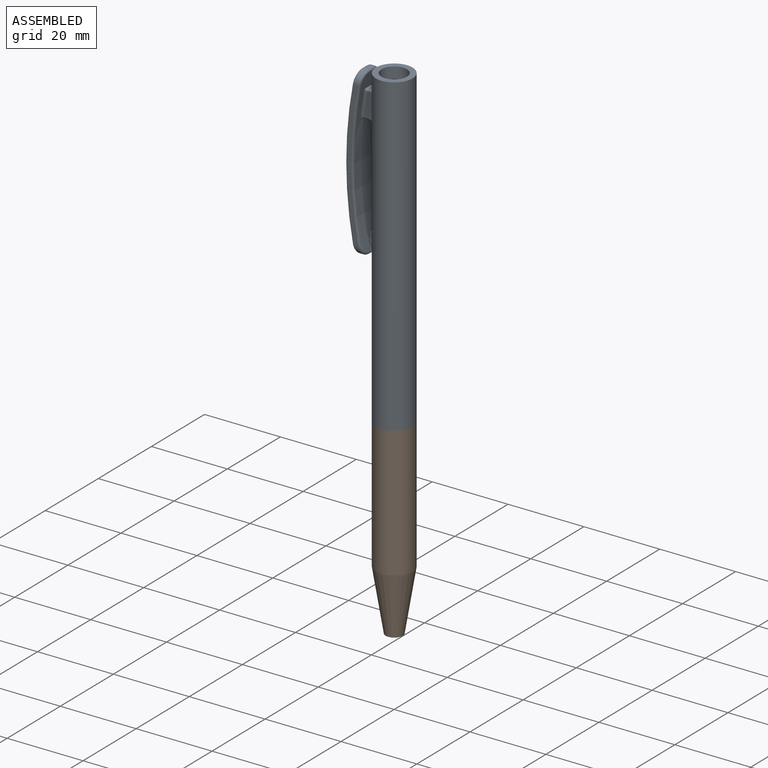
[diagram: assembled view]
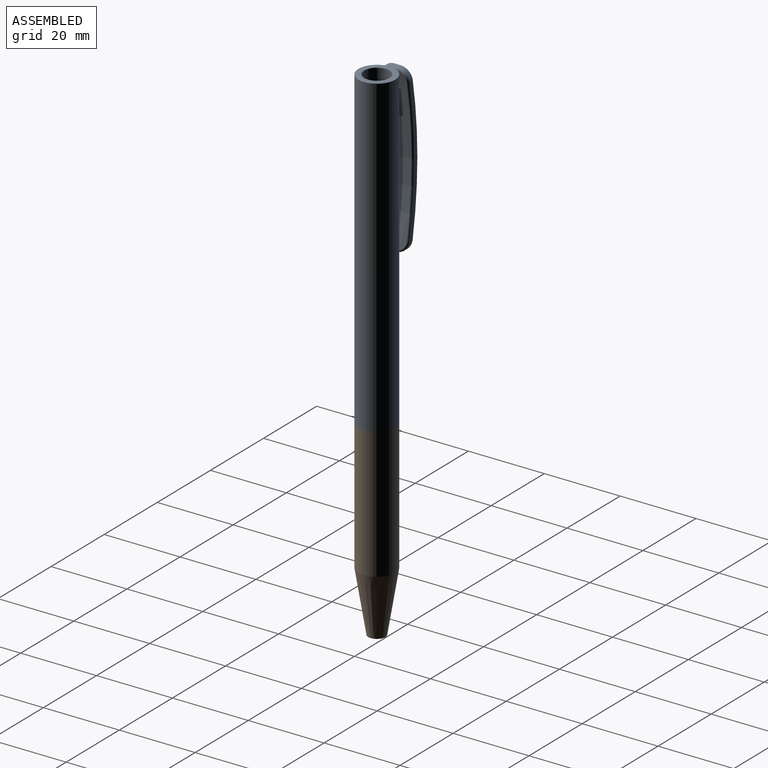
[diagram: assembled view, second angle]
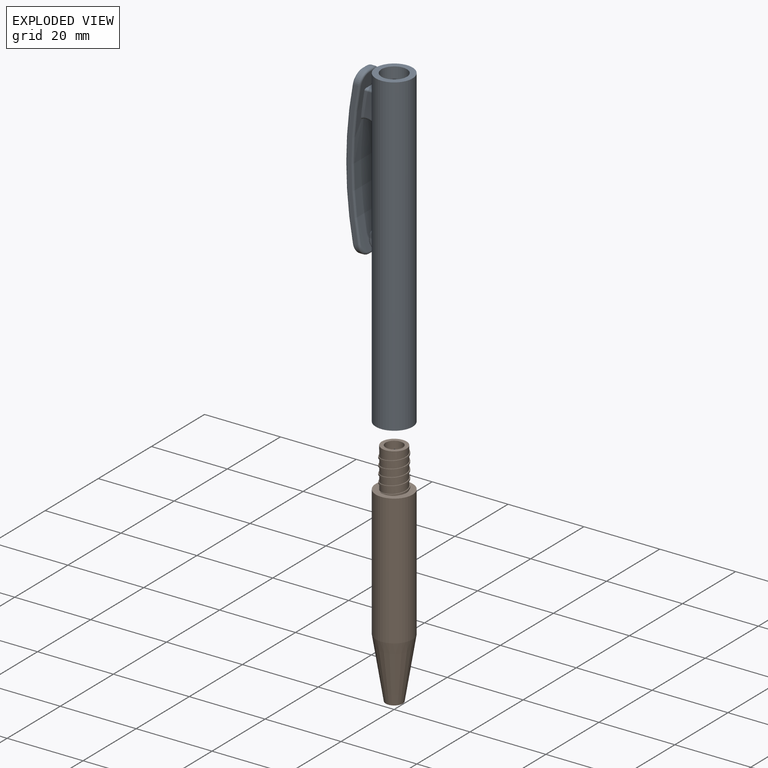
[diagram: exploded view]
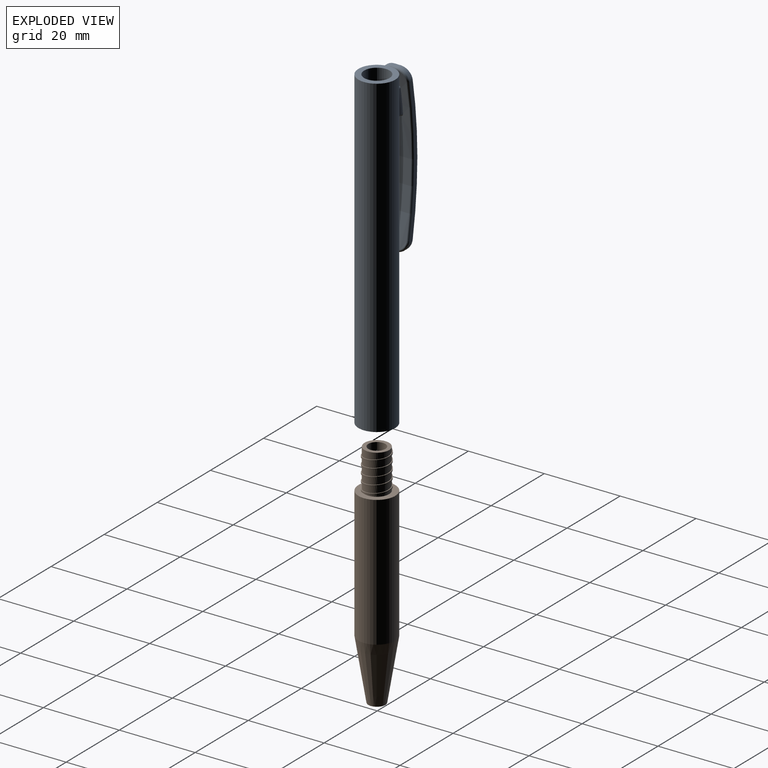
[diagram: exploded view, second angle]
ASSEMBLY  parts=2 mates=2
PART A: 56 faces, bbox 16.9x9.7x83 mm
  f0: cylinder r=3.35mm len=70.7mm, axis (0,0,-1), area 1467mm2, adj f1,f9,f14,f15
  f1: cylinder r=3.35mm len=6.7mm, axis (0,0,-1), area 29.4mm2, adj f0,f2,f15,f16
  f2: cylinder r=3.35mm len=6.7mm, axis (0,0,-1), area 29.4mm2, adj f1,f3,f15,f16
  f3: cylinder r=3.35mm len=6.7mm, axis (0,0,-1), area 29.4mm2, adj f2,f4,f15,f16
  f4: cylinder r=3.35mm len=6.7mm, axis (0,0,-1), area 29.4mm2, adj f3,f5,f15,f16
  f5: cylinder r=3.35mm len=6.7mm, axis (0,0,-1), area 29.4mm2, adj f4,f6,f15,f16
  f6: cylinder r=3.35mm len=6.7mm, axis (0,0,-1), area 26.9mm2, adj f5,f7,f12,f15,f16
  f7: cylinder r=3.35mm len=5.38mm, axis (0,0,-1), area 2.6mm2, adj f6,f12,f16
  f8: cylinder r=4.85mm len=83mm, axis (0,0,-1), area 2492.7mm2, adj f9,f10,f17,f18,f19,f20,f21,f22
  f9: plane 9.7x9.7mm, normal (0,0,1), area 38.6mm2, adj f0,f8
  f10: plane 9.7x9.7mm, normal (0,0,-1), area 32mm2, adj f8,f11
  f11: cylinder r=3.65mm len=7.3mm, axis (0,0,-1), area 22.9mm2, adj f10,f12,f13
  f12: plane 7.31x5.88mm, normal (0,0,-1), area 4.6mm2, adj f6,f7,f11,f15,f16
  f13: bspline ~13.93x8.44mm, area 89.5mm2, adj f11,f14,f15,f16
  f14: plane 0.6x0.3mm, normal (-0.03,1,-0.07), area 0.2mm2, adj f0,f13,f15,f16
  f15: bspline ~13.67x8.44mm, area 44mm2, adj f0,f1,f2,f3,f4,f5,f6,f12
  f16: bspline ~12.7x7.3mm, area 42.3mm2, adj f1,f2,f3,f4,f5,f6,f7,f12
  f17: plane 6.7x3.09mm, normal (0,-1,0), area 17mm2, adj f8,f22,f23,f27
  f18: plane 6.7x3.09mm, normal (0,1,0), area 17mm2, adj f8,f20,f21,f27
  f19: cylinder r=3mm len=3.01mm, axis (0,1,0), area 6.2mm2, adj f8,f20,f22,f27
  f20: torus R=3.5mm, axis (0,-1,0), area 2.5mm2, adj f8,f18,f19,f27
  f21: cylinder r=0.5mm len=2.21mm, axis (-1,0,0), area 1.6mm2, adj f8,f18,f27,f50
  f22: torus R=3.5mm, axis (0,-1,0), area 2.5mm2, adj f8,f17,f19,f27
  f23: cylinder r=0.5mm len=2.21mm, axis (1,0,0), area 1.6mm2, adj f8,f17,f27,f50
  f24: plane 1.5x1.02mm, normal (0,0,1), area 1.5mm2, adj f31,f33,f35,f44
  f25: cylinder r=104.39mm len=43.21mm, axis (0,1,0), area 270.1mm2, adj f34,f35,f36,f37,f38,f39,f40,f41
  f26: plane 1.5x1.02mm, normal (0,0,-1), area 1.5mm2, adj f30,f32,f40,f47
  f27: cylinder r=102.39mm len=42.79mm, axis (0,1,0), area 252.3mm2, adj f17,f18,f19,f20,f21,f22,f23,f42
  f28: plane 38x2.77mm, normal (0,-1,0), area 38.2mm2, adj f32,f33,f36,f43
  f29: plane 38x2.77mm, normal (0,1,0), area 38.2mm2, adj f30,f31,f39,f48
  f30: cylinder r=3mm len=3mm, axis (1,0,0), area 4.8mm2, adj f26,f29,f41,f49
  f31: cylinder r=3mm len=3mm, axis (-1,0,0), area 4.8mm2, adj f24,f29,f37,f46
  f32: cylinder r=3mm len=3mm, axis (-1,0,0), area 4.8mm2, adj f26,f28,f38,f45
  f33: cylinder r=3mm len=3mm, axis (1,0,0), area 4.8mm2, adj f24,f28,f34,f42
  f34: bspline ~3.66x3.17mm, area 3.2mm2, adj f25,f33,f35,f36
  f35: cylinder r=0.5mm len=1.5mm, axis (0,1,0), area 1mm2, adj f24,f25,f34,f37
  f36: torus R=103.89mm, axis (0,-1,0), area 30.1mm2, adj f25,f28,f34,f38
  f37: bspline ~3.68x3.66mm, area 3.2mm2, adj f25,f31,f35,f39
  f38: bspline ~3.68x3.17mm, area 3.2mm2, adj f25,f32,f36,f40
  f39: torus R=103.89mm, axis (0,-1,0), area 30.1mm2, adj f25,f29,f37,f41
  f40: cylinder r=0.5mm len=1.5mm, axis (0,1,0), area 1mm2, adj f25,f26,f38,f41
  f41: bspline ~3.66x3.17mm, area 3.2mm2, adj f25,f30,f39,f40
  f42: bspline ~3.76x3.69mm, area 3.8mm2, adj f27,f33,f43,f44
  f43: torus R=102.89mm, axis (0,-1,0), area 29.9mm2, adj f27,f28,f42,f45
  f44: cylinder r=0.5mm len=1.5mm, axis (0,1,0), area 1.3mm2, adj f24,f27,f42,f46
  f45: bspline ~3.76x3.69mm, area 3.8mm2, adj f27,f32,f43,f47
  f46: bspline ~3.76x3.69mm, area 3.8mm2, adj f27,f31,f44,f48
  f47: cylinder r=0.5mm len=1.5mm, axis (0,1,0), area 1.3mm2, adj f26,f27,f45,f49
  f48: torus R=102.89mm, axis (0,-1,0), area 29.9mm2, adj f27,f29,f46,f49
  f49: bspline ~3.76x3.69mm, area 3.8mm2, adj f27,f30,f47,f48
  f50: plane 2x1.99mm, normal (0,0,1), area 3.8mm2, adj f8,f21,f23,f27
  f51: cylinder r=3mm len=4.65mm, axis (0,1,0), area 10.3mm2, adj f8,f54,f55
  f52: plane 3.55x0.74mm, normal (0,-1,0), area 1.8mm2, adj f8,f55
  f53: plane 3.55x0.74mm, normal (0,1,0), area 1.8mm2, adj f8,f54
  f54: torus R=2.5mm, axis (0,-1,0), area 3.9mm2, adj f8,f51,f53
  f55: torus R=2.5mm, axis (0,-1,0), area 3.9mm2, adj f8,f51,f52
PART B: 20 faces, bbox 9.8x9.8x61.1 mm
  f0: cylinder r=3.25mm len=6.5mm, axis (0,0,-1), area 58mm2, adj f4,f5,f7,f9,f10
  f1: cylinder r=3.25mm len=6.5mm, axis (0,0,-1), area 19.6mm2, adj f2,f5,f7,f11
  f2: cylinder r=3.25mm len=6.5mm, axis (0,0,-1), area 32.6mm2, adj f1,f3,f5,f7
  f3: cylinder r=3.25mm len=6.5mm, axis (0,0,-1), area 32.6mm2, adj f2,f4,f5,f7
  f4: cylinder r=3.25mm len=6.5mm, axis (0,0,-1), area 32.6mm2, adj f0,f3,f5,f7
  f5: bspline ~9.33x7.97mm, area 19.7mm2, adj f0,f1,f2,f3,f4,f6,f10,f11
  f6: bspline ~10.4x7.97mm, area 41.3mm2, adj f5,f7,f10,f11
  f7: bspline ~10x7.97mm, area 20.5mm2, adj f0,f1,f2,f3,f4,f6,f10,f11
  f8: cylinder r=2.25mm len=12mm, axis (0,0,-1), area 169.6mm2, adj f9,f13
  f9: plane 6.5x6.5mm, normal (0,0,-1), area 17.3mm2, adj f0,f8
  f10: plane 0.4x0.2mm, normal (0,-1,-0.1), area 0.1mm2, adj f0,f5,f6,f7
  f11: plane 9.75x9.75mm, normal (0,0,-1), area 39.9mm2, adj f1,f5,f6,f7,f12
  f12: cylinder r=4.85mm len=34.5mm, axis (0,0,-1), area 1051.3mm2, adj f11,f19
  f13: cone r=2.25mm half-angle=30deg, axis (0,0,1), area 34.6mm2, adj f8,f14
  f14: cylinder r=3.25mm len=31.27mm, axis (0,0,-1), area 638.5mm2, adj f13,f18
  f15: plane 4.5x4.5mm, normal (0,0,1), area 11mm2, adj f16,f19
  f16: cylinder r=1.25mm len=8mm, axis (0,0,-1), area 62.8mm2, adj f15,f17
  f17: plane 4.5x4.5mm, normal (0,0,-1), area 11mm2, adj f16,f18
  f18: cone r=2.25mm half-angle=7.1deg, axis (0,0,-1), area 139.3mm2, adj f14,f17
  f19: cone r=4.85mm half-angle=9.2deg, axis (0,0,-1), area 361.6mm2, adj f12,f15
PLACE A rot(axis=(0,1,0),0deg) t=(0.07,-0.05,50.5)mm
PLACE B rot(axis=(0,1,0),180deg) t=(0.07,-0.05,61)mm
MATE planar B.f11 <-> A.f11  axis (0,0,1) through (0.07,0.02,50.5)mm
MATE cylindrical A.f8 <-> B.f12  axis (0,0,-1) through (0.07,-0.05,92)mm
